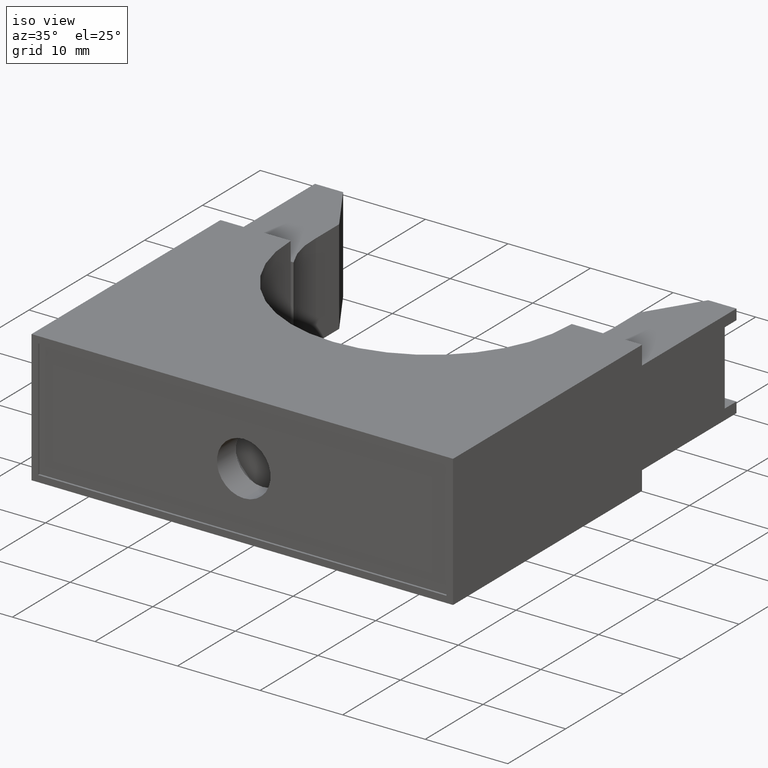
[diagram: clean part render]
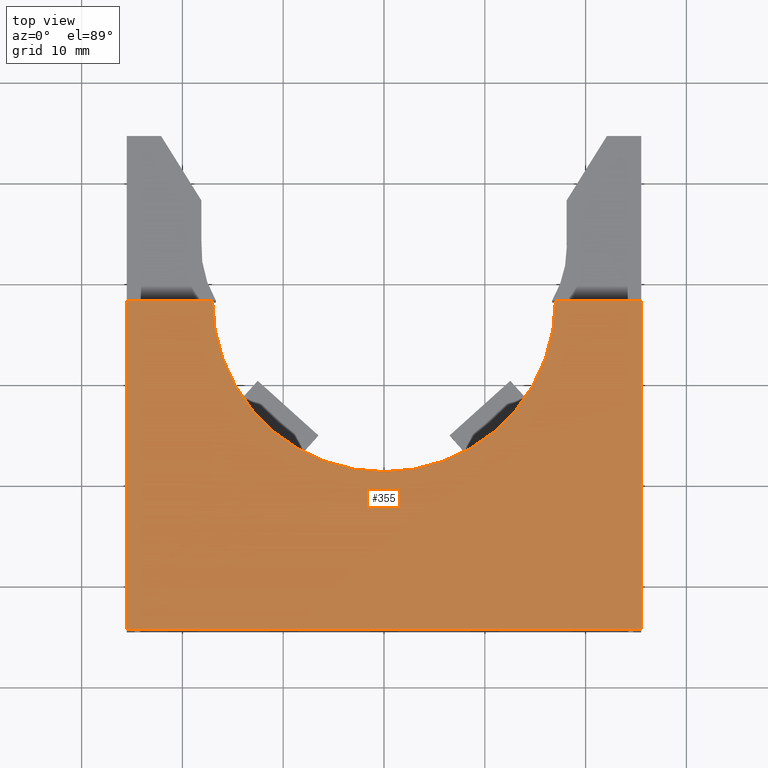
[diagram: tour spotlight — one face highlighted and labeled with its STEP entity id]
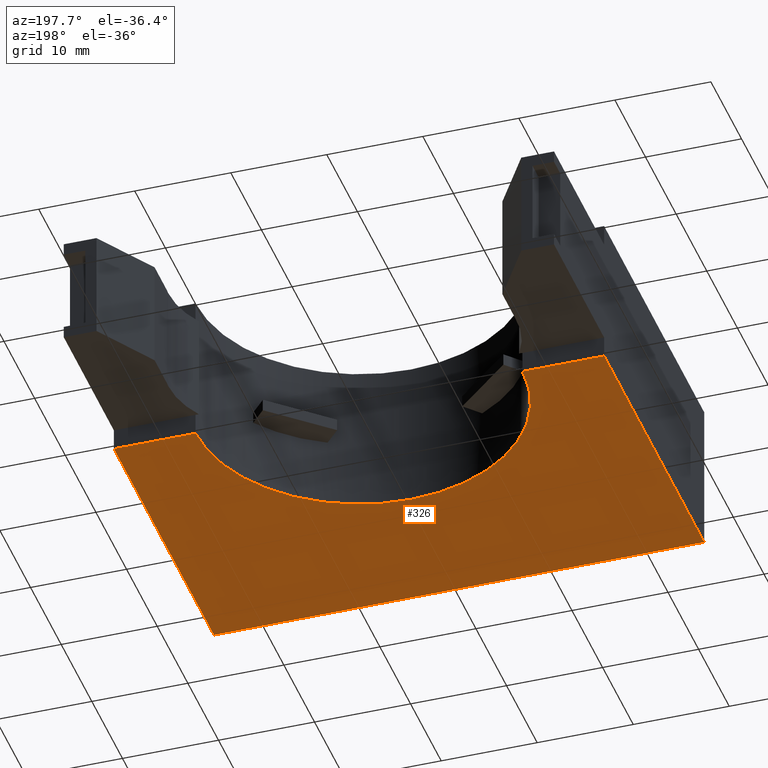
[diagram: tour spotlight — one face highlighted and labeled with its STEP entity id]
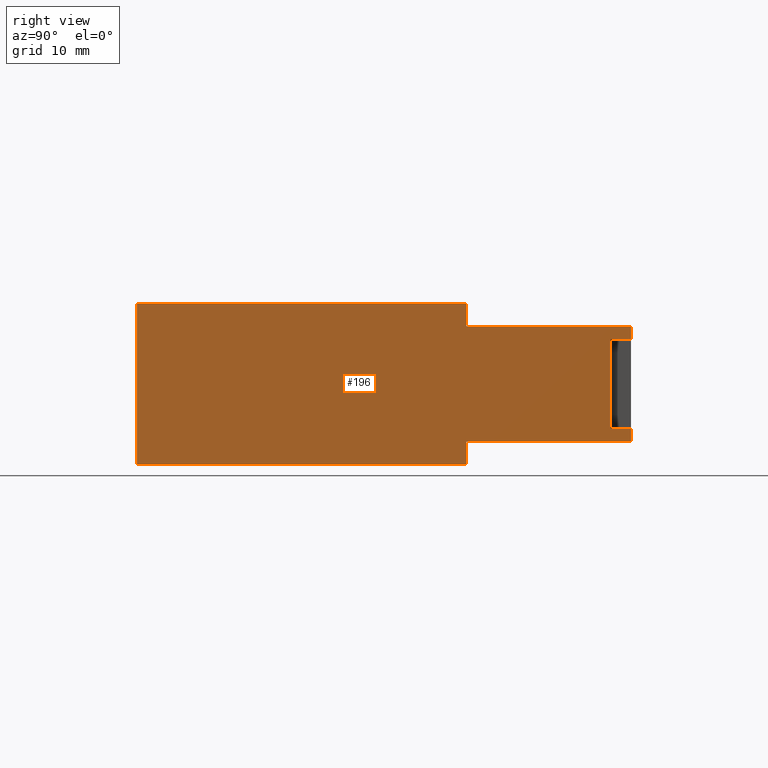
[diagram: tour spotlight — one face highlighted and labeled with its STEP entity id]
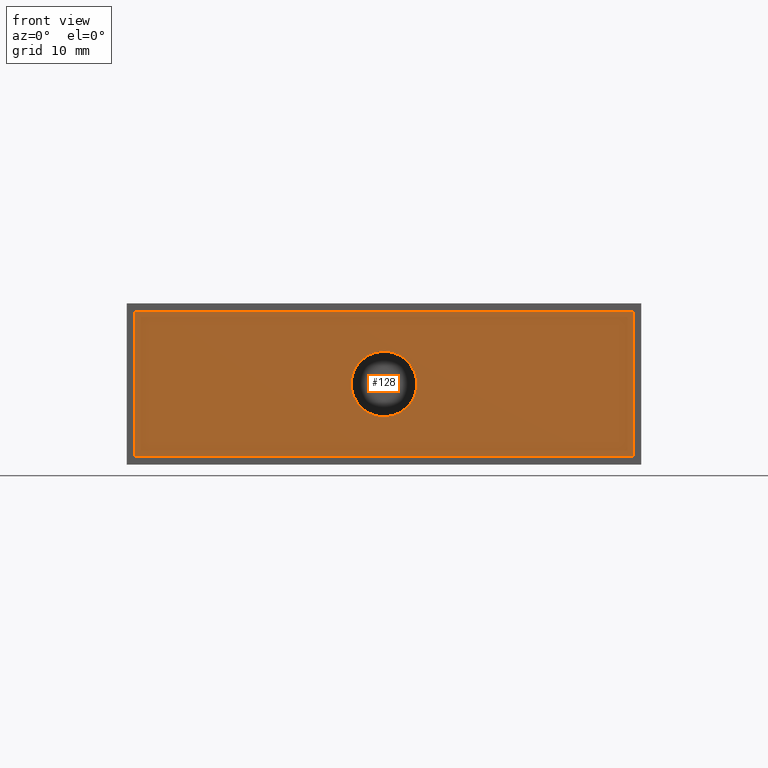
[diagram: tour spotlight — one face highlighted and labeled with its STEP entity id]
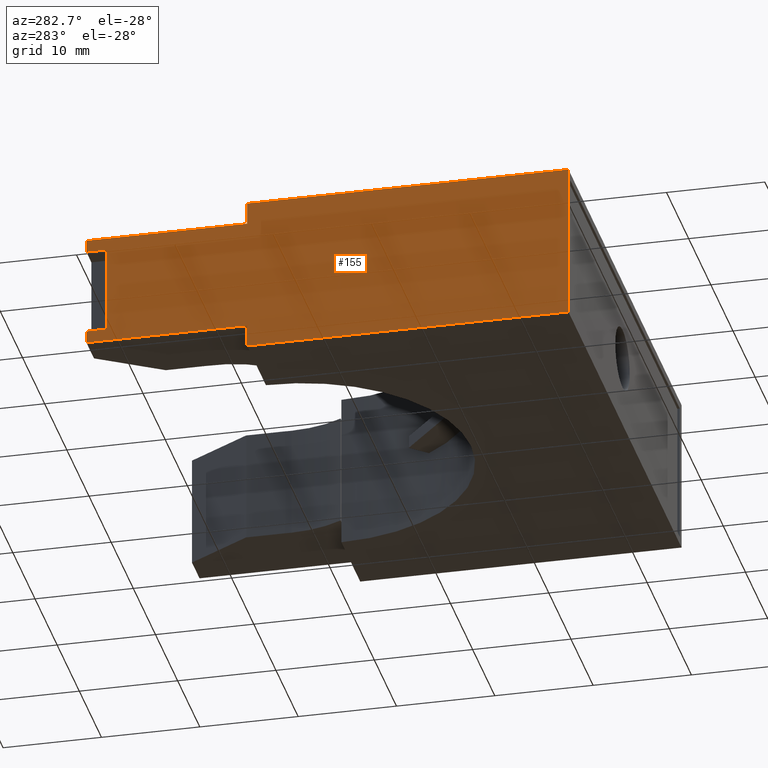
[diagram: tour spotlight — one face highlighted and labeled with its STEP entity id]
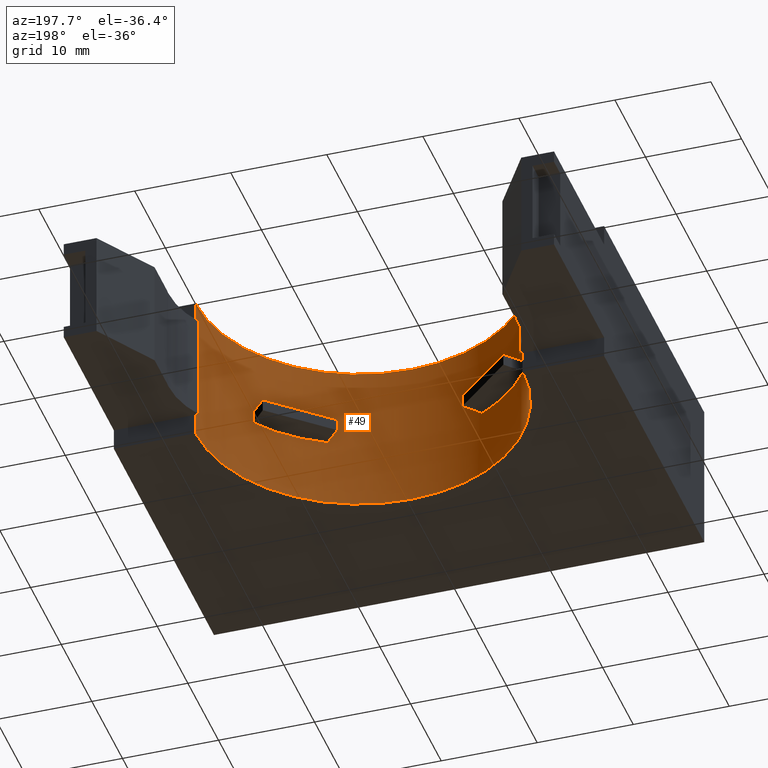
[diagram: tour spotlight — one face highlighted and labeled with its STEP entity id]
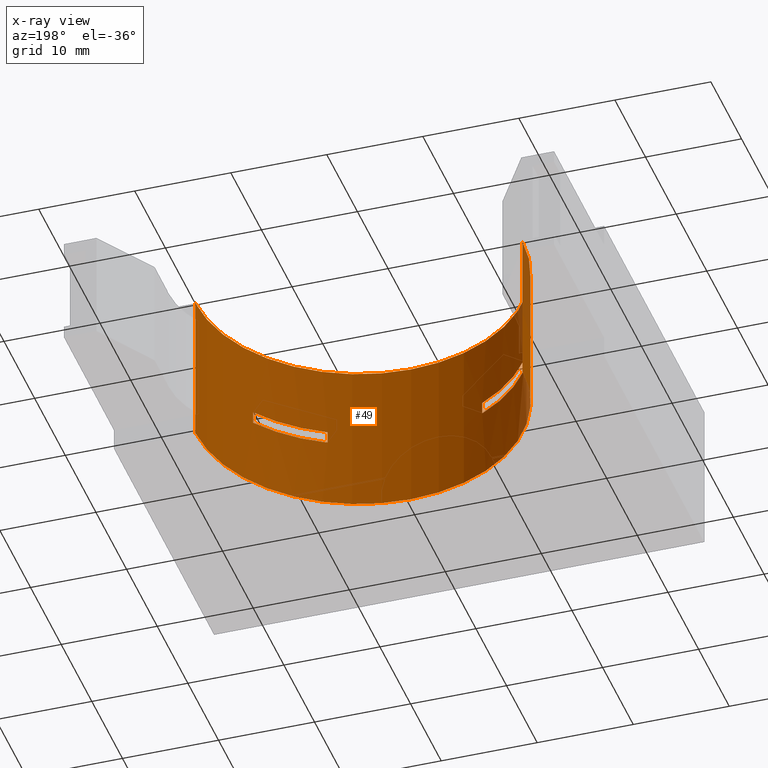
[diagram: x-ray of the same camera — body ghosted, this tour face saturated]
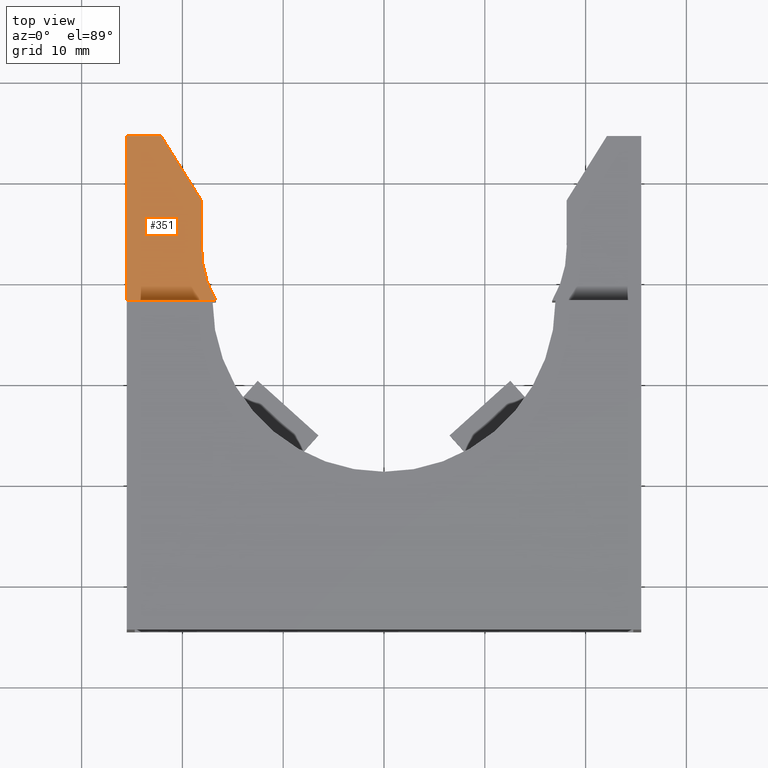
[diagram: tour spotlight — one face highlighted and labeled with its STEP entity id]
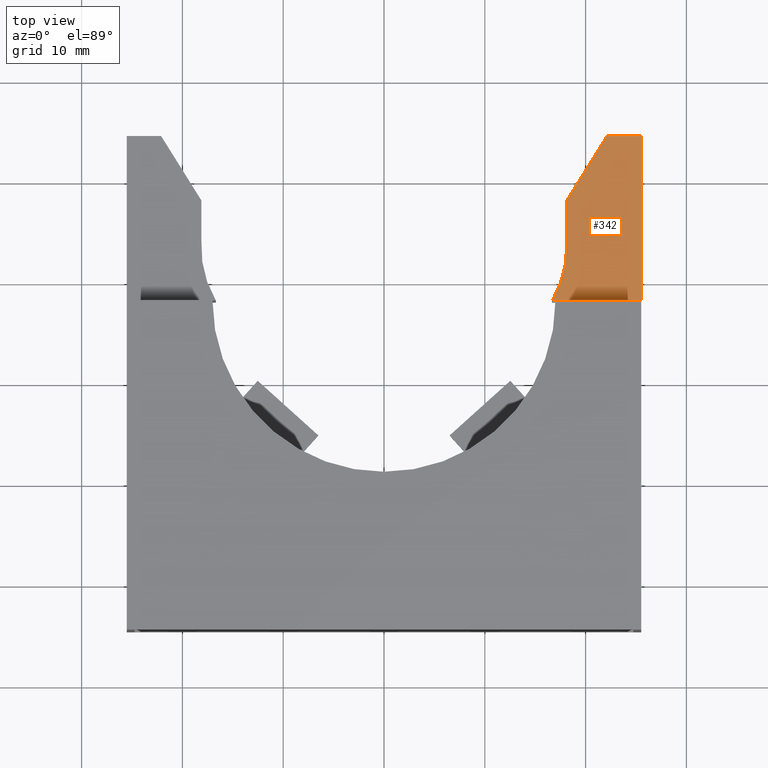
[diagram: tour spotlight — one face highlighted and labeled with its STEP entity id]
A machine part: a face-by-face anatomy tour. The part has 54 B-rep faces; the first image is the clean iso view, then the 8 largest visible faces are spotlighted one at a time (largest first), each with its STEP entity span.

Face 1 — top view, entity #355. In plain terms, the highlighted planar face has unit normal (-0, 0, 1).
Definition (entity closure, byte-faithful):
#30 = VERTEX_POINT ( 'NONE', #560 ) ;
#33 = VERTEX_POINT ( 'NONE', #555 ) ;
#35 = EDGE_CURVE ( 'NONE', #418, #33, #554, .T. ) ;
#48 = VERTEX_POINT ( 'NONE', #530 ) ;
#53 = VERTEX_POINT ( 'NONE', #771 ) ;
#82 = EDGE_CURVE ( 'NONE', #53, #30, #770, .T. ) ;
#121 = VERTEX_POINT ( 'NONE', #783 ) ;
#126 = EDGE_CURVE ( 'NONE', #48, #121, #823, .T. ) ;
#258 = EDGE_LOOP ( 'NONE', ( #372, #374, #375, #322, #323, #325 ) ) ;
#298 = EDGE_CURVE ( 'NONE', #30, #418, #959, .T. ) ;
#322 = ORIENTED_EDGE ( 'NONE', *, *, #35, .T. ) ;
#323 = ORIENTED_EDGE ( 'NONE', *, *, #324, .F. ) ;
#324 = EDGE_CURVE ( 'NONE', #121, #33, #1220, .T. ) ;
#325 = ORIENTED_EDGE ( 'NONE', *, *, #126, .F. ) ;
#355 = ADVANCED_FACE ( 'NONE', ( #1332 ), #1330, .T. ) ;
#372 = ORIENTED_EDGE ( 'NONE', *, *, #373, .F. ) ;
#373 = EDGE_CURVE ( 'NONE', #53, #48, #1288, .T. ) ;
#374 = ORIENTED_EDGE ( 'NONE', *, *, #82, .T. ) ;
#375 = ORIENTED_EDGE ( 'NONE', *, *, #298, .T. ) ;
#418 = VERTEX_POINT ( 'NONE', #1277 ) ;
#530 = CARTESIAN_POINT ( 'NONE',  ( -0.6700000000000000400, 0.3216666666666667700, 0.6300000000000000000 ) ) ;
#551 = DIRECTION ( 'NONE',  ( -1.415465281691328100E-016, 1.000000000000000000, -0.0000000000000000000 ) ) ;
#552 = VECTOR ( 'NONE', #551, 39.37007874015748100 ) ;
#553 = CARTESIAN_POINT ( 'NONE',  ( 1.004999999999999900, 0.9650000000000000800, 0.6300000000000000000 ) ) ;
#554 = LINE ( 'NONE', #553, #552 ) ;
#555 = CARTESIAN_POINT ( 'NONE',  ( 1.005000000000000100, 0.3216666666666667700, 0.6300000000000000000 ) ) ;
#560 = CARTESIAN_POINT ( 'NONE',  ( -1.004999999999999900, -0.9649999999999998600, 0.6300000000000000000 ) ) ;
#767 = DIRECTION ( 'NONE',  ( 1.415465281691328100E-016, -1.000000000000000000, 0.0000000000000000000 ) ) ;
#768 = VECTOR ( 'NONE', #767, 39.37007874015748100 ) ;
#769 = CARTESIAN_POINT ( 'NONE',  ( -1.005000000000000100, 0.9650000000000000800, 0.6300000000000000000 ) ) ;
#770 = LINE ( 'NONE', #769, #768 ) ;
#771 = CARTESIAN_POINT ( 'NONE',  ( -1.005000000000000100, 0.3216666666666667700, 0.6300000000000000000 ) ) ;
#783 = CARTESIAN_POINT ( 'NONE',  ( 0.6699999999999993700, 0.3216666666666667700, 0.6300000000000000000 ) ) ;
#819 = DIRECTION ( 'NONE',  ( 1.000000000000000000, 0.0000000000000000000, 0.0000000000000000000 ) ) ;
#820 = DIRECTION ( 'NONE',  ( 0.0000000000000000000, 0.0000000000000000000, 1.000000000000000000 ) ) ;
#821 = CARTESIAN_POINT ( 'NONE',  ( 0.0000000000000000000, 0.3216666666666668800, 0.6300000000000000000 ) ) ;
#822 = AXIS2_PLACEMENT_3D ( 'NONE', #821, #820, #819 ) ;
#823 = CIRCLE ( 'NONE', #822, 0.6699999999999999300 ) ;
#956 = DIRECTION ( 'NONE',  ( 1.000000000000000000, 0.0000000000000000000, 0.0000000000000000000 ) ) ;
#957 = VECTOR ( 'NONE', #956, 39.37007874015748100 ) ;
#958 = CARTESIAN_POINT ( 'NONE',  ( -1.004999999999999900, -0.9649999999999998600, 0.6300000000000000000 ) ) ;
#959 = LINE ( 'NONE', #958, #957 ) ;
#1217 = DIRECTION ( 'NONE',  ( 1.000000000000000000, -0.0000000000000000000, -0.0000000000000000000 ) ) ;
#1218 = VECTOR ( 'NONE', #1217, 39.37007874015748100 ) ;
#1219 = CARTESIAN_POINT ( 'NONE',  ( -1.005000000000000100, 0.3216666666666667700, 0.6300000000000000000 ) ) ;
#1220 = LINE ( 'NONE', #1219, #1218 ) ;
#1277 = CARTESIAN_POINT ( 'NONE',  ( 1.005000000000000100, -0.9649999999999998600, 0.6300000000000000000 ) ) ;
#1285 = DIRECTION ( 'NONE',  ( 1.000000000000000000, -0.0000000000000000000, -0.0000000000000000000 ) ) ;
#1286 = VECTOR ( 'NONE', #1285, 39.37007874015748100 ) ;
#1287 = CARTESIAN_POINT ( 'NONE',  ( -1.005000000000000100, 0.3216666666666667700, 0.6300000000000000000 ) ) ;
#1288 = LINE ( 'NONE', #1287, #1286 ) ;
#1326 = DIRECTION ( 'NONE',  ( 1.000000000000000000, 0.0000000000000000000, 0.0000000000000000000 ) ) ;
#1327 = DIRECTION ( 'NONE',  ( -0.0000000000000000000, 0.0000000000000000000, 1.000000000000000000 ) ) ;
#1328 = CARTESIAN_POINT ( 'NONE',  ( -1.004999999999999900, -0.9649999999999998600, 0.6300000000000000000 ) ) ;
#1329 = AXIS2_PLACEMENT_3D ( 'NONE', #1328, #1327, #1326 ) ;
#1330 = PLANE ( 'NONE',  #1329 ) ;
#1332 = FACE_OUTER_BOUND ( 'NONE', #258, .T. ) ;

Face 2 — auxiliary view, entity #326. In plain terms, the highlighted planar face has unit normal (-0, 0, 1).
Definition (entity closure, byte-faithful):
#12 = VERTEX_POINT ( 'NONE', #682 ) ;
#17 = EDGE_CURVE ( 'NONE', #247, #18, #672, .T. ) ;
#18 = VERTEX_POINT ( 'NONE', #668 ) ;
#46 = VERTEX_POINT ( 'NONE', #531 ) ;
#67 = EDGE_CURVE ( 'NONE', #18, #12, #888, .T. ) ;
#185 = EDGE_CURVE ( 'NONE', #186, #46, #1085, .T. ) ;
#186 = VERTEX_POINT ( 'NONE', #932 ) ;
#247 = VERTEX_POINT ( 'NONE', #1103 ) ;
#284 = EDGE_LOOP ( 'NONE', ( #285, #286, #360, #361, #439, #440 ) ) ;
#285 = ORIENTED_EDGE ( 'NONE', *, *, #291, .F. ) ;
#286 = ORIENTED_EDGE ( 'NONE', *, *, #287, .T. ) ;
#287 = EDGE_CURVE ( 'NONE', #400, #186, #1135, .T. ) ;
#291 = EDGE_CURVE ( 'NONE', #400, #247, #1127, .T. ) ;
#326 = ADVANCED_FACE ( 'NONE', ( #1216 ), #1215, .F. ) ;
#360 = ORIENTED_EDGE ( 'NONE', *, *, #185, .T. ) ;
#361 = ORIENTED_EDGE ( 'NONE', *, *, #362, .T. ) ;
#362 = EDGE_CURVE ( 'NONE', #46, #12, #1321, .T. ) ;
#400 = VERTEX_POINT ( 'NONE', #1233 ) ;
#439 = ORIENTED_EDGE ( 'NONE', *, *, #67, .F. ) ;
#440 = ORIENTED_EDGE ( 'NONE', *, *, #17, .F. ) ;
#531 = CARTESIAN_POINT ( 'NONE',  ( 0.6699999999999993700, 0.3216666666666668800, 0.0000000000000000000 ) ) ;
#668 = CARTESIAN_POINT ( 'NONE',  ( 1.005000000000000100, -0.9649999999999998600, 0.0000000000000000000 ) ) ;
#669 = DIRECTION ( 'NONE',  ( 1.000000000000000000, 0.0000000000000000000, 0.0000000000000000000 ) ) ;
#670 = VECTOR ( 'NONE', #669, 39.37007874015748100 ) ;
#671 = CARTESIAN_POINT ( 'NONE',  ( -1.004999999999999900, -0.9649999999999998600, 0.0000000000000000000 ) ) ;
#672 = LINE ( 'NONE', #671, #670 ) ;
#682 = CARTESIAN_POINT ( 'NONE',  ( 1.005000000000000100, 0.3216666666666668800, 0.0000000000000000000 ) ) ;
#885 = DIRECTION ( 'NONE',  ( -1.415465281691328100E-016, 1.000000000000000000, -0.0000000000000000000 ) ) ;
#886 = VECTOR ( 'NONE', #885, 39.37007874015748100 ) ;
#887 = CARTESIAN_POINT ( 'NONE',  ( 1.004999999999999900, 0.9650000000000000800, 0.0000000000000000000 ) ) ;
#888 = LINE ( 'NONE', #887, #886 ) ;
#932 = CARTESIAN_POINT ( 'NONE',  ( -0.6700000000000000400, 0.3216666666666668800, 0.0000000000000000000 ) ) ;
#933 = DIRECTION ( 'NONE',  ( 1.000000000000000000, 0.0000000000000000000, 0.0000000000000000000 ) ) ;
#934 = DIRECTION ( 'NONE',  ( 0.0000000000000000000, 0.0000000000000000000, 1.000000000000000000 ) ) ;
#935 = CARTESIAN_POINT ( 'NONE',  ( 0.0000000000000000000, 0.3216666666666668800, 0.0000000000000000000 ) ) ;
#936 = AXIS2_PLACEMENT_3D ( 'NONE', #935, #934, #933 ) ;
#966 = DIRECTION ( 'NONE',  ( 1.415465281691328100E-016, -1.000000000000000000, 0.0000000000000000000 ) ) ;
#967 = VECTOR ( 'NONE', #966, 39.37007874015748100 ) ;
#968 = CARTESIAN_POINT ( 'NONE',  ( -1.005000000000000100, 0.9650000000000000800, 0.0000000000000000000 ) ) ;
#1085 = CIRCLE ( 'NONE', #936, 0.6699999999999999300 ) ;
#1103 = CARTESIAN_POINT ( 'NONE',  ( -1.004999999999999900, -0.9649999999999998600, 0.0000000000000000000 ) ) ;
#1127 = LINE ( 'NONE', #968, #967 ) ;
#1132 = DIRECTION ( 'NONE',  ( 1.000000000000000000, -0.0000000000000000000, -0.0000000000000000000 ) ) ;
#1133 = VECTOR ( 'NONE', #1132, 39.37007874015748100 ) ;
#1134 = CARTESIAN_POINT ( 'NONE',  ( -1.005000000000000100, 0.3216666666666668800, 0.0000000000000000000 ) ) ;
#1135 = LINE ( 'NONE', #1134, #1133 ) ;
#1167 = DIRECTION ( 'NONE',  ( 1.000000000000000000, 0.0000000000000000000, 0.0000000000000000000 ) ) ;
#1168 = DIRECTION ( 'NONE',  ( -0.0000000000000000000, 0.0000000000000000000, 1.000000000000000000 ) ) ;
#1210 = AXIS2_PLACEMENT_3D ( 'NONE', #1211, #1168, #1167 ) ;
#1211 = CARTESIAN_POINT ( 'NONE',  ( -1.004999999999999900, -0.9649999999999998600, 0.0000000000000000000 ) ) ;
#1215 = PLANE ( 'NONE',  #1210 ) ;
#1216 = FACE_OUTER_BOUND ( 'NONE', #284, .T. ) ;
#1233 = CARTESIAN_POINT ( 'NONE',  ( -1.005000000000000100, 0.3216666666666668800, 0.0000000000000000000 ) ) ;
#1318 = DIRECTION ( 'NONE',  ( 1.000000000000000000, -0.0000000000000000000, -0.0000000000000000000 ) ) ;
#1319 = VECTOR ( 'NONE', #1318, 39.37007874015748100 ) ;
#1320 = CARTESIAN_POINT ( 'NONE',  ( -1.005000000000000100, 0.3216666666666668800, 0.0000000000000000000 ) ) ;
#1321 = LINE ( 'NONE', #1320, #1319 ) ;

Face 3 — right view, entity #196. In plain terms, the highlighted planar face has unit normal (-1, -0, 0).
Definition (entity closure, byte-faithful):
#12 = VERTEX_POINT ( 'NONE', #682 ) ;
#13 = ORIENTED_EDGE ( 'NONE', *, *, #14, .F. ) ;
#14 = EDGE_CURVE ( 'NONE', #15, #12, #677, .T. ) ;
#15 = VERTEX_POINT ( 'NONE', #673 ) ;
#16 = ORIENTED_EDGE ( 'NONE', *, *, #70, .F. ) ;
#18 = VERTEX_POINT ( 'NONE', #668 ) ;
#20 = EDGE_CURVE ( 'NONE', #418, #18, #667, .T. ) ;
#32 = EDGE_CURVE ( 'NONE', #33, #64, #559, .T. ) ;
#33 = VERTEX_POINT ( 'NONE', #555 ) ;
#34 = ORIENTED_EDGE ( 'NONE', *, *, #35, .F. ) ;
#35 = EDGE_CURVE ( 'NONE', #418, #33, #554, .T. ) ;
#55 = ORIENTED_EDGE ( 'NONE', *, *, #56, .T. ) ;
#56 = EDGE_CURVE ( 'NONE', #383, #57, #850, .T. ) ;
#57 = VERTEX_POINT ( 'NONE', #846 ) ;
#58 = ORIENTED_EDGE ( 'NONE', *, *, #59, .F. ) ;
#59 = EDGE_CURVE ( 'NONE', #60, #57, #765, .T. ) ;
#60 = VERTEX_POINT ( 'NONE', #746 ) ;
#62 = ORIENTED_EDGE ( 'NONE', *, *, #63, .F. ) ;
#63 = EDGE_CURVE ( 'NONE', #64, #60, #835, .T. ) ;
#64 = VERTEX_POINT ( 'NONE', #856 ) ;
#65 = ORIENTED_EDGE ( 'NONE', *, *, #32, .F. ) ;
#66 = ORIENTED_EDGE ( 'NONE', *, *, #67, .T. ) ;
#67 = EDGE_CURVE ( 'NONE', #18, #12, #888, .T. ) ;
#70 = EDGE_CURVE ( 'NONE', #71, #15, #892, .T. ) ;
#71 = VERTEX_POINT ( 'NONE', #689 ) ;
#72 = ORIENTED_EDGE ( 'NONE', *, *, #73, .F. ) ;
#73 = EDGE_CURVE ( 'NONE', #74, #71, #753, .T. ) ;
#74 = VERTEX_POINT ( 'NONE', #749 ) ;
#154 = ORIENTED_EDGE ( 'NONE', *, *, #20, .T. ) ;
#196 = ADVANCED_FACE ( 'NONE', ( #1033 ), #1037, .F. ) ;
#262 = EDGE_CURVE ( 'NONE', #384, #74, #1046, .T. ) ;
#295 = EDGE_LOOP ( 'NONE', ( #398, #55, #58, #62, #65, #34, #154, #66, #13, #16, #72, #394 ) ) ;
#382 = EDGE_CURVE ( 'NONE', #383, #384, #1161, .T. ) ;
#383 = VERTEX_POINT ( 'NONE', #1154 ) ;
#384 = VERTEX_POINT ( 'NONE', #1248 ) ;
#394 = ORIENTED_EDGE ( 'NONE', *, *, #262, .F. ) ;
#398 = ORIENTED_EDGE ( 'NONE', *, *, #382, .F. ) ;
#418 = VERTEX_POINT ( 'NONE', #1277 ) ;
#551 = DIRECTION ( 'NONE',  ( -1.415465281691328100E-016, 1.000000000000000000, -0.0000000000000000000 ) ) ;
#552 = VECTOR ( 'NONE', #551, 39.37007874015748100 ) ;
#553 = CARTESIAN_POINT ( 'NONE',  ( 1.004999999999999900, 0.9650000000000000800, 0.6300000000000000000 ) ) ;
#554 = LINE ( 'NONE', #553, #552 ) ;
#555 = CARTESIAN_POINT ( 'NONE',  ( 1.005000000000000100, 0.3216666666666667700, 0.6300000000000000000 ) ) ;
#556 = DIRECTION ( 'NONE',  ( 0.0000000000000000000, 0.0000000000000000000, -1.000000000000000000 ) ) ;
#557 = VECTOR ( 'NONE', #556, 39.37007874015748100 ) ;
#558 = CARTESIAN_POINT ( 'NONE',  ( 1.005000000000000100, 0.3216666666666667700, 0.6300000000000000000 ) ) ;
#559 = LINE ( 'NONE', #558, #557 ) ;
#664 = DIRECTION ( 'NONE',  ( -0.0000000000000000000, -0.0000000000000000000, -1.000000000000000000 ) ) ;
#665 = VECTOR ( 'NONE', #664, 39.37007874015748100 ) ;
#666 = CARTESIAN_POINT ( 'NONE',  ( 1.005000000000000100, -0.9649999999999998600, 0.6300000000000000000 ) ) ;
#667 = LINE ( 'NONE', #666, #665 ) ;
#668 = CARTESIAN_POINT ( 'NONE',  ( 1.005000000000000100, -0.9649999999999998600, 0.0000000000000000000 ) ) ;
#673 = CARTESIAN_POINT ( 'NONE',  ( 1.005000000000000100, 0.3216666666666668800, 0.08954999999999972700 ) ) ;
#674 = DIRECTION ( 'NONE',  ( -0.0000000000000000000, -0.0000000000000000000, -1.000000000000000000 ) ) ;
#675 = VECTOR ( 'NONE', #674, 39.37007874015748100 ) ;
#676 = CARTESIAN_POINT ( 'NONE',  ( 1.005000000000000100, 0.3216666666666668800, 0.0000000000000000000 ) ) ;
#677 = LINE ( 'NONE', #676, #675 ) ;
#682 = CARTESIAN_POINT ( 'NONE',  ( 1.005000000000000100, 0.3216666666666668800, 0.0000000000000000000 ) ) ;
#689 = CARTESIAN_POINT ( 'NONE',  ( 1.005000000000000100, 0.9650000000000000800, 0.08954999999999979600 ) ) ;
#746 = CARTESIAN_POINT ( 'NONE',  ( 1.005000000000000100, 0.9650000000000000800, 0.5404500000000004300 ) ) ;
#749 = CARTESIAN_POINT ( 'NONE',  ( 1.004999999999999900, 0.9650000000000000800, 0.1397749999999995900 ) ) ;
#750 = DIRECTION ( 'NONE',  ( -0.0000000000000000000, -0.0000000000000000000, -1.000000000000000000 ) ) ;
#751 = VECTOR ( 'NONE', #750, 39.37007874015748100 ) ;
#752 = CARTESIAN_POINT ( 'NONE',  ( 1.004999999999999900, 0.9650000000000000800, 0.6300000000000000000 ) ) ;
#753 = LINE ( 'NONE', #752, #751 ) ;
#762 = DIRECTION ( 'NONE',  ( -0.0000000000000000000, -0.0000000000000000000, -1.000000000000000000 ) ) ;
#763 = VECTOR ( 'NONE', #762, 39.37007874015748100 ) ;
#764 = CARTESIAN_POINT ( 'NONE',  ( 1.004999999999999900, 0.9650000000000000800, 0.6300000000000000000 ) ) ;
#765 = LINE ( 'NONE', #764, #763 ) ;
#834 = CARTESIAN_POINT ( 'NONE',  ( 1.005000000000000100, 0.9650000000000000800, 0.5404500000000004300 ) ) ;
#835 = LINE ( 'NONE', #834, #858 ) ;
#846 = CARTESIAN_POINT ( 'NONE',  ( 1.005000000000000100, 0.9650000000000000800, 0.4902249999999999700 ) ) ;
#847 = DIRECTION ( 'NONE',  ( -0.0000000000000000000, 1.000000000000000000, -0.0000000000000000000 ) ) ;
#848 = VECTOR ( 'NONE', #847, 39.37007874015748100 ) ;
#849 = CARTESIAN_POINT ( 'NONE',  ( 1.005000000000000100, 0.8850000000000001200, 0.4902249999999999700 ) ) ;
#850 = LINE ( 'NONE', #849, #848 ) ;
#856 = CARTESIAN_POINT ( 'NONE',  ( 1.005000000000000100, 0.3216666666666667700, 0.5404500000000002100 ) ) ;
#857 = DIRECTION ( 'NONE',  ( -0.0000000000000000000, 1.000000000000000000, 2.123197922536992200E-016 ) ) ;
#858 = VECTOR ( 'NONE', #857, 39.37007874015748100 ) ;
#885 = DIRECTION ( 'NONE',  ( -1.415465281691328100E-016, 1.000000000000000000, -0.0000000000000000000 ) ) ;
#886 = VECTOR ( 'NONE', #885, 39.37007874015748100 ) ;
#887 = CARTESIAN_POINT ( 'NONE',  ( 1.004999999999999900, 0.9650000000000000800, 0.0000000000000000000 ) ) ;
#888 = LINE ( 'NONE', #887, #886 ) ;
#889 = DIRECTION ( 'NONE',  ( 0.0000000000000000000, -1.000000000000000000, -1.061598961268496300E-016 ) ) ;
#890 = VECTOR ( 'NONE', #889, 39.37007874015748100 ) ;
#891 = CARTESIAN_POINT ( 'NONE',  ( 1.005000000000000100, 0.9650000000000000800, 0.08954999999999979600 ) ) ;
#892 = LINE ( 'NONE', #891, #890 ) ;
#1031 = AXIS2_PLACEMENT_3D ( 'NONE', #1032, #1068, #1067 ) ;
#1032 = CARTESIAN_POINT ( 'NONE',  ( 1.004999999999999900, 0.9650000000000000800, 0.6300000000000000000 ) ) ;
#1033 = FACE_OUTER_BOUND ( 'NONE', #295, .T. ) ;
#1037 = PLANE ( 'NONE',  #1031 ) ;
#1043 = DIRECTION ( 'NONE',  ( -0.0000000000000000000, 1.000000000000000000, -0.0000000000000000000 ) ) ;
#1044 = VECTOR ( 'NONE', #1043, 39.37007874015748100 ) ;
#1045 = CARTESIAN_POINT ( 'NONE',  ( 1.005000000000000100, 0.8850000000000001200, 0.1397749999999995900 ) ) ;
#1046 = LINE ( 'NONE', #1045, #1044 ) ;
#1067 = DIRECTION ( 'NONE',  ( 1.415465281691328100E-016, -1.000000000000000000, 0.0000000000000000000 ) ) ;
#1068 = DIRECTION ( 'NONE',  ( -1.000000000000000000, -1.415465281691328100E-016, 0.0000000000000000000 ) ) ;
#1154 = CARTESIAN_POINT ( 'NONE',  ( 1.005000000000000100, 0.8850000000000001200, 0.4902249999999999700 ) ) ;
#1155 = DIRECTION ( 'NONE',  ( 3.897628753979541200E-016, -0.0000000000000000000, -1.000000000000000000 ) ) ;
#1156 = VECTOR ( 'NONE', #1155, 39.37007874015748100 ) ;
#1157 = CARTESIAN_POINT ( 'NONE',  ( 1.005000000000000100, 0.8850000000000001200, 0.1397749999999995900 ) ) ;
#1161 = LINE ( 'NONE', #1157, #1156 ) ;
#1248 = CARTESIAN_POINT ( 'NONE',  ( 1.005000000000000100, 0.8850000000000001200, 0.1397749999999995900 ) ) ;
#1277 = CARTESIAN_POINT ( 'NONE',  ( 1.005000000000000100, -0.9649999999999998600, 0.6300000000000000000 ) ) ;

Face 4 — front view, entity #128. In plain terms, the highlighted planar face has unit normal (-0, -1, 0).
Definition (entity closure, byte-faithful):
#128 = ADVANCED_FACE ( 'NONE', ( #731, #730 ), #729, .T. ) ;
#129 = EDGE_LOOP ( 'NONE', ( #130, #134, #137, #190 ) ) ;
#130 = ORIENTED_EDGE ( 'NONE', *, *, #131, .T. ) ;
#131 = EDGE_CURVE ( 'NONE', #132, #133, #727, .T. ) ;
#132 = VERTEX_POINT ( 'NONE', #817 ) ;
#133 = VERTEX_POINT ( 'NONE', #816 ) ;
#134 = ORIENTED_EDGE ( 'NONE', *, *, #135, .T. ) ;
#135 = EDGE_CURVE ( 'NONE', #133, #136, #815, .T. ) ;
#136 = VERTEX_POINT ( 'NONE', #811 ) ;
#137 = ORIENTED_EDGE ( 'NONE', *, *, #138, .T. ) ;
#138 = EDGE_CURVE ( 'NONE', #136, #139, #810, .T. ) ;
#139 = VERTEX_POINT ( 'NONE', #806 ) ;
#140 = EDGE_LOOP ( 'NONE', ( #192, #194 ) ) ;
#172 = EDGE_CURVE ( 'NONE', #173, #174, #1094, .T. ) ;
#173 = VERTEX_POINT ( 'NONE', #1057 ) ;
#174 = VERTEX_POINT ( 'NONE', #1056 ) ;
#190 = ORIENTED_EDGE ( 'NONE', *, *, #191, .T. ) ;
#191 = EDGE_CURVE ( 'NONE', #139, #132, #1042, .T. ) ;
#192 = ORIENTED_EDGE ( 'NONE', *, *, #193, .T. ) ;
#193 = EDGE_CURVE ( 'NONE', #174, #173, #1118, .T. ) ;
#194 = ORIENTED_EDGE ( 'NONE', *, *, #172, .T. ) ;
#721 = DIRECTION ( 'NONE',  ( -0.0000000000000000000, -0.0000000000000000000, 1.000000000000000000 ) ) ;
#722 = VECTOR ( 'NONE', #721, 39.37007874015748100 ) ;
#723 = CARTESIAN_POINT ( 'NONE',  ( 0.9737500000000000000, -0.9549999999999999600, 0.5987500000000000000 ) ) ;
#724 = DIRECTION ( 'NONE',  ( 1.000000000000000000, -1.402746081470738500E-016, 0.0000000000000000000 ) ) ;
#725 = DIRECTION ( 'NONE',  ( -1.402746081470738500E-016, -1.000000000000000000, 0.0000000000000000000 ) ) ;
#726 = AXIS2_PLACEMENT_3D ( 'NONE', #728, #725, #724 ) ;
#727 = LINE ( 'NONE', #723, #722 ) ;
#728 = CARTESIAN_POINT ( 'NONE',  ( 0.9737500000000001200, -0.9549999999999999600, 0.5987500000000000000 ) ) ;
#729 = PLANE ( 'NONE',  #726 ) ;
#730 = FACE_BOUND ( 'NONE', #140, .T. ) ;
#731 = FACE_OUTER_BOUND ( 'NONE', #129, .T. ) ;
#806 = CARTESIAN_POINT ( 'NONE',  ( -0.9737499999999997800, -0.9549999999999996300, 0.03124999999999997600 ) ) ;
#807 = DIRECTION ( 'NONE',  ( -0.0000000000000000000, -0.0000000000000000000, -1.000000000000000000 ) ) ;
#808 = VECTOR ( 'NONE', #807, 39.37007874015748100 ) ;
#809 = CARTESIAN_POINT ( 'NONE',  ( -0.9737499999999997800, -0.9549999999999996300, 0.03124999999999997600 ) ) ;
#810 = LINE ( 'NONE', #809, #808 ) ;
#811 = CARTESIAN_POINT ( 'NONE',  ( -0.9737499999999997800, -0.9549999999999996300, 0.5987500000000000000 ) ) ;
#812 = DIRECTION ( 'NONE',  ( -1.000000000000000000, 1.402746081470738500E-016, -0.0000000000000000000 ) ) ;
#813 = VECTOR ( 'NONE', #812, 39.37007874015748100 ) ;
#814 = CARTESIAN_POINT ( 'NONE',  ( -0.9737499999999997800, -0.9549999999999996300, 0.5987500000000000000 ) ) ;
#815 = LINE ( 'NONE', #814, #813 ) ;
#816 = CARTESIAN_POINT ( 'NONE',  ( 0.9737500000000000000, -0.9549999999999999600, 0.5987500000000000000 ) ) ;
#817 = CARTESIAN_POINT ( 'NONE',  ( 0.9737500000000000000, -0.9549999999999999600, 0.03125000000000000000 ) ) ;
#931 = CARTESIAN_POINT ( 'NONE',  ( 0.0000000000000000000, -0.9549999999999996300, 0.3149999999999998900 ) ) ;
#1039 = DIRECTION ( 'NONE',  ( 1.000000000000000000, -1.402746081470738500E-016, 1.315074451378817300E-017 ) ) ;
#1040 = VECTOR ( 'NONE', #1039, 39.37007874015748100 ) ;
#1041 = CARTESIAN_POINT ( 'NONE',  ( 0.9737500000000000000, -0.9549999999999999600, 0.03125000000000000000 ) ) ;
#1042 = LINE ( 'NONE', #1041, #1040 ) ;
#1056 = CARTESIAN_POINT ( 'NONE',  ( 0.0000000000000000000, -0.9549999999999996300, 0.4430314960629920800 ) ) ;
#1057 = CARTESIAN_POINT ( 'NONE',  ( 1.567933618435903400E-017, -0.9549999999999996300, 0.1869685039370077300 ) ) ;
#1058 = DIRECTION ( 'NONE',  ( 0.0000000000000000000, 0.0000000000000000000, 1.000000000000000000 ) ) ;
#1092 = DIRECTION ( 'NONE',  ( -0.0000000000000000000, 1.000000000000000000, 1.018617520532313100E-016 ) ) ;
#1093 = AXIS2_PLACEMENT_3D ( 'NONE', #931, #1092, #1058 ) ;
#1094 = CIRCLE ( 'NONE', #1093, 0.1280314960629921900 ) ;
#1114 = DIRECTION ( 'NONE',  ( 0.0000000000000000000, 0.0000000000000000000, 1.000000000000000000 ) ) ;
#1115 = DIRECTION ( 'NONE',  ( -0.0000000000000000000, 1.000000000000000000, 1.018617520532313100E-016 ) ) ;
#1116 = CARTESIAN_POINT ( 'NONE',  ( 0.0000000000000000000, -0.9549999999999996300, 0.3149999999999998900 ) ) ;
#1117 = AXIS2_PLACEMENT_3D ( 'NONE', #1116, #1115, #1114 ) ;
#1118 = CIRCLE ( 'NONE', #1117, 0.1280314960629921900 ) ;

Face 5 — auxiliary view, entity #155. In plain terms, the highlighted planar face has unit normal (1, 0, -0).
Definition (entity closure, byte-faithful):
#2 = ORIENTED_EDGE ( 'NONE', *, *, #68, .T. ) ;
#3 = ORIENTED_EDGE ( 'NONE', *, *, #156, .F. ) ;
#4 = ORIENTED_EDGE ( 'NONE', *, *, #105, .T. ) ;
#21 = ORIENTED_EDGE ( 'NONE', *, *, #181, .T. ) ;
#22 = ORIENTED_EDGE ( 'NONE', *, *, #23, .T. ) ;
#23 = EDGE_CURVE ( 'NONE', #183, #24, #663, .T. ) ;
#24 = VERTEX_POINT ( 'NONE', #659 ) ;
#28 = ORIENTED_EDGE ( 'NONE', *, *, #29, .F. ) ;
#29 = EDGE_CURVE ( 'NONE', #30, #247, #564, .T. ) ;
#30 = VERTEX_POINT ( 'NONE', #560 ) ;
#53 = VERTEX_POINT ( 'NONE', #771 ) ;
#54 = EDGE_LOOP ( 'NONE', ( #76, #399, #21, #22, #397, #376, #28, #81, #2, #77, #4, #3 ) ) ;
#68 = EDGE_CURVE ( 'NONE', #53, #297, #855, .T. ) ;
#69 = VERTEX_POINT ( 'NONE', #851 ) ;
#76 = ORIENTED_EDGE ( 'NONE', *, *, #296, .F. ) ;
#77 = ORIENTED_EDGE ( 'NONE', *, *, #78, .T. ) ;
#78 = EDGE_CURVE ( 'NONE', #297, #294, #761, .T. ) ;
#81 = ORIENTED_EDGE ( 'NONE', *, *, #82, .F. ) ;
#82 = EDGE_CURVE ( 'NONE', #53, #30, #770, .T. ) ;
#103 = VERTEX_POINT ( 'NONE', #778 ) ;
#105 = EDGE_CURVE ( 'NONE', #294, #103, #777, .T. ) ;
#155 = ADVANCED_FACE ( 'NONE', ( #699 ), #720, .F. ) ;
#156 = EDGE_CURVE ( 'NONE', #242, #103, #718, .T. ) ;
#181 = EDGE_CURVE ( 'NONE', #182, #183, #1030, .T. ) ;
#182 = VERTEX_POINT ( 'NONE', #1088 ) ;
#183 = VERTEX_POINT ( 'NONE', #1087 ) ;
#199 = EDGE_CURVE ( 'NONE', #24, #400, #1062, .T. ) ;
#242 = VERTEX_POINT ( 'NONE', #1108 ) ;
#247 = VERTEX_POINT ( 'NONE', #1103 ) ;
#291 = EDGE_CURVE ( 'NONE', #400, #247, #1127, .T. ) ;
#294 = VERTEX_POINT ( 'NONE', #965 ) ;
#296 = EDGE_CURVE ( 'NONE', #69, #242, #964, .T. ) ;
#297 = VERTEX_POINT ( 'NONE', #960 ) ;
#376 = ORIENTED_EDGE ( 'NONE', *, *, #291, .T. ) ;
#397 = ORIENTED_EDGE ( 'NONE', *, *, #199, .T. ) ;
#399 = ORIENTED_EDGE ( 'NONE', *, *, #420, .T. ) ;
#400 = VERTEX_POINT ( 'NONE', #1233 ) ;
#420 = EDGE_CURVE ( 'NONE', #69, #182, #1274, .T. ) ;
#560 = CARTESIAN_POINT ( 'NONE',  ( -1.004999999999999900, -0.9649999999999998600, 0.6300000000000000000 ) ) ;
#561 = DIRECTION ( 'NONE',  ( -0.0000000000000000000, -0.0000000000000000000, -1.000000000000000000 ) ) ;
#562 = VECTOR ( 'NONE', #561, 39.37007874015748100 ) ;
#563 = CARTESIAN_POINT ( 'NONE',  ( -1.004999999999999900, -0.9649999999999998600, 0.6300000000000000000 ) ) ;
#564 = LINE ( 'NONE', #563, #562 ) ;
#659 = CARTESIAN_POINT ( 'NONE',  ( -1.005000000000000100, 0.3216666666666668800, 0.08954999999999972700 ) ) ;
#660 = DIRECTION ( 'NONE',  ( 0.0000000000000000000, -1.000000000000000000, -1.061598961268496300E-016 ) ) ;
#661 = VECTOR ( 'NONE', #660, 39.37007874015748100 ) ;
#662 = CARTESIAN_POINT ( 'NONE',  ( -1.005000000000000100, 0.9650000000000000800, 0.08954999999999979600 ) ) ;
#663 = LINE ( 'NONE', #662, #661 ) ;
#699 = FACE_OUTER_BOUND ( 'NONE', #54, .T. ) ;
#711 = DIRECTION ( 'NONE',  ( -0.0000000000000000000, 1.000000000000000000, -0.0000000000000000000 ) ) ;
#712 = VECTOR ( 'NONE', #711, 39.37007874015748100 ) ;
#713 = CARTESIAN_POINT ( 'NONE',  ( -1.005000000000000100, 0.8850000000000001200, 0.4902249999999999700 ) ) ;
#715 = DIRECTION ( 'NONE',  ( -1.415465281691328100E-016, 1.000000000000000000, 0.0000000000000000000 ) ) ;
#716 = DIRECTION ( 'NONE',  ( 1.000000000000000000, 1.415465281691328100E-016, -0.0000000000000000000 ) ) ;
#717 = AXIS2_PLACEMENT_3D ( 'NONE', #719, #716, #715 ) ;
#718 = LINE ( 'NONE', #713, #712 ) ;
#719 = CARTESIAN_POINT ( 'NONE',  ( -1.005000000000000100, 0.9650000000000000800, 0.6300000000000000000 ) ) ;
#720 = PLANE ( 'NONE',  #717 ) ;
#758 = DIRECTION ( 'NONE',  ( -0.0000000000000000000, 1.000000000000000000, 2.123197922536992200E-016 ) ) ;
#759 = VECTOR ( 'NONE', #758, 39.37007874015748100 ) ;
#760 = CARTESIAN_POINT ( 'NONE',  ( -1.005000000000000100, 0.9650000000000000800, 0.5404500000000004300 ) ) ;
#761 = LINE ( 'NONE', #760, #759 ) ;
#767 = DIRECTION ( 'NONE',  ( 1.415465281691328100E-016, -1.000000000000000000, 0.0000000000000000000 ) ) ;
#768 = VECTOR ( 'NONE', #767, 39.37007874015748100 ) ;
#769 = CARTESIAN_POINT ( 'NONE',  ( -1.005000000000000100, 0.9650000000000000800, 0.6300000000000000000 ) ) ;
#770 = LINE ( 'NONE', #769, #768 ) ;
#771 = CARTESIAN_POINT ( 'NONE',  ( -1.005000000000000100, 0.3216666666666667700, 0.6300000000000000000 ) ) ;
#774 = DIRECTION ( 'NONE',  ( -0.0000000000000000000, -0.0000000000000000000, -1.000000000000000000 ) ) ;
#775 = VECTOR ( 'NONE', #774, 39.37007874015748100 ) ;
#776 = CARTESIAN_POINT ( 'NONE',  ( -1.005000000000000100, 0.9650000000000000800, 0.6300000000000000000 ) ) ;
#777 = LINE ( 'NONE', #776, #775 ) ;
#778 = CARTESIAN_POINT ( 'NONE',  ( -1.005000000000000100, 0.9650000000000000800, 0.4902249999999999700 ) ) ;
#851 = CARTESIAN_POINT ( 'NONE',  ( -1.005000000000000100, 0.8850000000000001200, 0.1397750000000000900 ) ) ;
#852 = DIRECTION ( 'NONE',  ( 0.0000000000000000000, 0.0000000000000000000, -1.000000000000000000 ) ) ;
#853 = VECTOR ( 'NONE', #852, 39.37007874015748100 ) ;
#854 = CARTESIAN_POINT ( 'NONE',  ( -1.005000000000000100, 0.3216666666666667700, 0.6300000000000000000 ) ) ;
#855 = LINE ( 'NONE', #854, #853 ) ;
#960 = CARTESIAN_POINT ( 'NONE',  ( -1.005000000000000100, 0.3216666666666667700, 0.5404500000000002100 ) ) ;
#961 = DIRECTION ( 'NONE',  ( -7.795257507959093200E-016, 0.0000000000000000000, 1.000000000000000000 ) ) ;
#962 = VECTOR ( 'NONE', #961, 39.37007874015748100 ) ;
#963 = CARTESIAN_POINT ( 'NONE',  ( -1.004999999999999900, 0.8850000000000001200, 0.1397750000000000900 ) ) ;
#964 = LINE ( 'NONE', #963, #962 ) ;
#965 = CARTESIAN_POINT ( 'NONE',  ( -1.005000000000000100, 0.9650000000000000800, 0.5404500000000004300 ) ) ;
#966 = DIRECTION ( 'NONE',  ( 1.415465281691328100E-016, -1.000000000000000000, 0.0000000000000000000 ) ) ;
#967 = VECTOR ( 'NONE', #966, 39.37007874015748100 ) ;
#968 = CARTESIAN_POINT ( 'NONE',  ( -1.005000000000000100, 0.9650000000000000800, 0.0000000000000000000 ) ) ;
#1027 = DIRECTION ( 'NONE',  ( -0.0000000000000000000, -0.0000000000000000000, -1.000000000000000000 ) ) ;
#1028 = VECTOR ( 'NONE', #1027, 39.37007874015748100 ) ;
#1029 = CARTESIAN_POINT ( 'NONE',  ( -1.005000000000000100, 0.9650000000000000800, 0.6300000000000000000 ) ) ;
#1030 = LINE ( 'NONE', #1029, #1028 ) ;
#1059 = DIRECTION ( 'NONE',  ( -0.0000000000000000000, -0.0000000000000000000, -1.000000000000000000 ) ) ;
#1060 = VECTOR ( 'NONE', #1059, 39.37007874015748100 ) ;
#1061 = CARTESIAN_POINT ( 'NONE',  ( -1.005000000000000100, 0.3216666666666668800, 0.0000000000000000000 ) ) ;
#1062 = LINE ( 'NONE', #1061, #1060 ) ;
#1087 = CARTESIAN_POINT ( 'NONE',  ( -1.005000000000000100, 0.9650000000000000800, 0.08954999999999979600 ) ) ;
#1088 = CARTESIAN_POINT ( 'NONE',  ( -1.004999999999999900, 0.9650000000000000800, 0.1397750000000000900 ) ) ;
#1103 = CARTESIAN_POINT ( 'NONE',  ( -1.004999999999999900, -0.9649999999999998600, 0.0000000000000000000 ) ) ;
#1108 = CARTESIAN_POINT ( 'NONE',  ( -1.005000000000000100, 0.8850000000000001200, 0.4902249999999999700 ) ) ;
#1127 = LINE ( 'NONE', #968, #967 ) ;
#1233 = CARTESIAN_POINT ( 'NONE',  ( -1.005000000000000100, 0.3216666666666668800, 0.0000000000000000000 ) ) ;
#1271 = DIRECTION ( 'NONE',  ( -0.0000000000000000000, 1.000000000000000000, -0.0000000000000000000 ) ) ;
#1272 = VECTOR ( 'NONE', #1271, 39.37007874015748100 ) ;
#1273 = CARTESIAN_POINT ( 'NONE',  ( -1.004999999999999900, 0.8850000000000001200, 0.1397750000000000900 ) ) ;
#1274 = LINE ( 'NONE', #1273, #1272 ) ;

Face 6 — auxiliary view, entity #49. An x-ray twin of the same camera follows (body ghosted, this face saturated) — the face is partly hidden behind the body. In plain terms, the highlighted cylindrical surface (partial cylindrical patch) has radius 17.018 mm, axis along (-0, -0, 1).
Definition (entity closure, byte-faithful):
#36 = VERTEX_POINT ( 'NONE', #550 ) ;
#37 = ORIENTED_EDGE ( 'NONE', *, *, #38, .T. ) ;
#38 = EDGE_CURVE ( 'NONE', #36, #39, #548, .T. ) ;
#39 = VERTEX_POINT ( 'NONE', #549 ) ;
#40 = ORIENTED_EDGE ( 'NONE', *, *, #127, .F. ) ;
#41 = ORIENTED_EDGE ( 'NONE', *, *, #42, .F. ) ;
#42 = EDGE_CURVE ( 'NONE', #43, #124, #540, .T. ) ;
#43 = VERTEX_POINT ( 'NONE', #536 ) ;
#44 = ORIENTED_EDGE ( 'NONE', *, *, #45, .F. ) ;
#45 = EDGE_CURVE ( 'NONE', #46, #43, #535, .T. ) ;
#46 = VERTEX_POINT ( 'NONE', #531 ) ;
#47 = ORIENTED_EDGE ( 'NONE', *, *, #185, .F. ) ;
#48 = VERTEX_POINT ( 'NONE', #530 ) ;
#49 = ADVANCED_FACE ( 'NONE', ( #529, #845, #744 ), #745, .F. ) ;
#83 = VERTEX_POINT ( 'NONE', #766 ) ;
#84 = ORIENTED_EDGE ( 'NONE', *, *, #141, .T. ) ;
#106 = VERTEX_POINT ( 'NONE', #773 ) ;
#107 = ORIENTED_EDGE ( 'NONE', *, *, #108, .T. ) ;
#108 = EDGE_CURVE ( 'NONE', #106, #149, #800, .T. ) ;
#109 = EDGE_LOOP ( 'NONE', ( #110, #114, #37, #40 ) ) ;
#110 = ORIENTED_EDGE ( 'NONE', *, *, #111, .F. ) ;
#111 = EDGE_CURVE ( 'NONE', #112, #113, #795, .T. ) ;
#112 = VERTEX_POINT ( 'NONE', #791 ) ;
#113 = VERTEX_POINT ( 'NONE', #790 ) ;
#114 = ORIENTED_EDGE ( 'NONE', *, *, #115, .T. ) ;
#115 = EDGE_CURVE ( 'NONE', #112, #36, #789, .T. ) ;
#120 = EDGE_LOOP ( 'NONE', ( #125, #122, #41, #44, #47, #187, #84, #143 ) ) ;
#121 = VERTEX_POINT ( 'NONE', #783 ) ;
#122 = ORIENTED_EDGE ( 'NONE', *, *, #123, .F. ) ;
#123 = EDGE_CURVE ( 'NONE', #124, #121, #829, .T. ) ;
#124 = VERTEX_POINT ( 'NONE', #825 ) ;
#125 = ORIENTED_EDGE ( 'NONE', *, *, #126, .T. ) ;
#126 = EDGE_CURVE ( 'NONE', #48, #121, #823, .T. ) ;
#127 = EDGE_CURVE ( 'NONE', #113, #39, #824, .T. ) ;
#141 = EDGE_CURVE ( 'NONE', #83, #142, #805, .T. ) ;
#142 = VERTEX_POINT ( 'NONE', #844 ) ;
#143 = ORIENTED_EDGE ( 'NONE', *, *, #144, .T. ) ;
#144 = EDGE_CURVE ( 'NONE', #142, #48, #843, .T. ) ;
#145 = EDGE_LOOP ( 'NONE', ( #146, #150, #153, #107 ) ) ;
#146 = ORIENTED_EDGE ( 'NONE', *, *, #147, .F. ) ;
#147 = EDGE_CURVE ( 'NONE', #148, #149, #839, .T. ) ;
#148 = VERTEX_POINT ( 'NONE', #707 ) ;
#149 = VERTEX_POINT ( 'NONE', #706 ) ;
#150 = ORIENTED_EDGE ( 'NONE', *, *, #151, .F. ) ;
#151 = EDGE_CURVE ( 'NONE', #152, #148, #705, .T. ) ;
#152 = VERTEX_POINT ( 'NONE', #700 ) ;
#153 = ORIENTED_EDGE ( 'NONE', *, *, #189, .T. ) ;
#185 = EDGE_CURVE ( 'NONE', #186, #46, #1085, .T. ) ;
#186 = VERTEX_POINT ( 'NONE', #932 ) ;
#187 = ORIENTED_EDGE ( 'NONE', *, *, #188, .T. ) ;
#188 = EDGE_CURVE ( 'NONE', #186, #83, #1102, .T. ) ;
#189 = EDGE_CURVE ( 'NONE', #152, #106, #1098, .T. ) ;
#529 = FACE_OUTER_BOUND ( 'NONE', #120, .T. ) ;
#530 = CARTESIAN_POINT ( 'NONE',  ( -0.6700000000000000400, 0.3216666666666667700, 0.6300000000000000000 ) ) ;
#531 = CARTESIAN_POINT ( 'NONE',  ( 0.6699999999999993700, 0.3216666666666668800, 0.0000000000000000000 ) ) ;
#532 = DIRECTION ( 'NONE',  ( -0.0000000000000000000, -0.0000000000000000000, 1.000000000000000000 ) ) ;
#533 = VECTOR ( 'NONE', #532, 39.37007874015748100 ) ;
#534 = CARTESIAN_POINT ( 'NONE',  ( 0.6699999999999999300, 0.3216666666666668800, 0.0000000000000000000 ) ) ;
#535 = LINE ( 'NONE', #534, #533 ) ;
#536 = CARTESIAN_POINT ( 'NONE',  ( 0.6699999999999999300, 0.3216666666666668800, 0.08954999999999972700 ) ) ;
#537 = DIRECTION ( 'NONE',  ( -0.0000000000000000000, -0.0000000000000000000, 1.000000000000000000 ) ) ;
#538 = VECTOR ( 'NONE', #537, 39.37007874015748100 ) ;
#539 = CARTESIAN_POINT ( 'NONE',  ( 0.6699999999999999300, 0.3216666666666668800, 0.0000000000000000000 ) ) ;
#540 = LINE ( 'NONE', #539, #538 ) ;
#544 = DIRECTION ( 'NONE',  ( 0.0000000000000000000, -1.000000000000000000, -1.019346266292635600E-016 ) ) ;
#545 = DIRECTION ( 'NONE',  ( -0.0000000000000000000, 8.326672684688674100E-017, -1.000000000000000000 ) ) ;
#546 = CARTESIAN_POINT ( 'NONE',  ( 0.0000000000000000000, 0.3216666666666668800, 0.3399999999999999700 ) ) ;
#547 = AXIS2_PLACEMENT_3D ( 'NONE', #546, #545, #544 ) ;
#548 = CIRCLE ( 'NONE', #547, 0.6699999999999999300 ) ;
#549 = CARTESIAN_POINT ( 'NONE',  ( 0.3170103983947471500, -0.2685912492561978200, 0.3399999999999999100 ) ) ;
#550 = CARTESIAN_POINT ( 'NONE',  ( 0.5538878115156663500, -0.05530586847931125800, 0.3399999999999999700 ) ) ;
#700 = CARTESIAN_POINT ( 'NONE',  ( -0.3170103983947468700, -0.2685912492561979800, 0.2899999999999999200 ) ) ;
#701 = DIRECTION ( 'NONE',  ( 0.0000000000000000000, 1.000000000000000000, 1.019346266292635600E-016 ) ) ;
#702 = DIRECTION ( 'NONE',  ( 0.0000000000000000000, 8.326672684688674100E-017, -1.000000000000000000 ) ) ;
#703 = CARTESIAN_POINT ( 'NONE',  ( 0.0000000000000000000, 0.3216666666666668800, 0.2899999999999999800 ) ) ;
#704 = AXIS2_PLACEMENT_3D ( 'NONE', #703, #702, #701 ) ;
#705 = CIRCLE ( 'NONE', #704, 0.6699999999999999300 ) ;
#706 = CARTESIAN_POINT ( 'NONE',  ( -0.5538878115156661300, -0.05530586847931130700, 0.3399999999999999700 ) ) ;
#707 = CARTESIAN_POINT ( 'NONE',  ( -0.5538878115156661300, -0.05530586847931130700, 0.2899999999999999800 ) ) ;
#708 = DIRECTION ( 'NONE',  ( -0.0000000000000000000, -8.326672684688672800E-017, 1.000000000000000000 ) ) ;
#732 = DIRECTION ( 'NONE',  ( -0.0000000000000000000, -8.326672684688672800E-017, 1.000000000000000000 ) ) ;
#733 = VECTOR ( 'NONE', #732, 39.37007874015748100 ) ;
#744 = FACE_BOUND ( 'NONE', #109, .T. ) ;
#745 = CYLINDRICAL_SURFACE ( 'NONE', #756, 0.6699999999999999300 ) ;
#748 = DIRECTION ( 'NONE',  ( 1.000000000000000000, 0.0000000000000000000, 0.0000000000000000000 ) ) ;
#754 = DIRECTION ( 'NONE',  ( -0.0000000000000000000, -0.0000000000000000000, 1.000000000000000000 ) ) ;
#755 = CARTESIAN_POINT ( 'NONE',  ( 0.0000000000000000000, 0.3216666666666668800, 0.0000000000000000000 ) ) ;
#756 = AXIS2_PLACEMENT_3D ( 'NONE', #755, #754, #748 ) ;
#766 = CARTESIAN_POINT ( 'NONE',  ( -0.6700000000000000400, 0.3216666666666668800, 0.08954999999999972700 ) ) ;
#773 = CARTESIAN_POINT ( 'NONE',  ( -0.3170103983947467100, -0.2685912492561980900, 0.3399999999999999100 ) ) ;
#783 = CARTESIAN_POINT ( 'NONE',  ( 0.6699999999999993700, 0.3216666666666667700, 0.6300000000000000000 ) ) ;
#786 = DIRECTION ( 'NONE',  ( -0.0000000000000000000, -8.326672684688672800E-017, 1.000000000000000000 ) ) ;
#787 = VECTOR ( 'NONE', #786, 39.37007874015748100 ) ;
#788 = CARTESIAN_POINT ( 'NONE',  ( 0.5538878115156663500, -0.05530586847931125800, 0.2899999999999999800 ) ) ;
#789 = LINE ( 'NONE', #788, #787 ) ;
#790 = CARTESIAN_POINT ( 'NONE',  ( 0.3170103983947472100, -0.2685912492561979800, 0.2899999999999999800 ) ) ;
#791 = CARTESIAN_POINT ( 'NONE',  ( 0.5538878115156663500, -0.05530586847931125800, 0.2899999999999999800 ) ) ;
#792 = DIRECTION ( 'NONE',  ( 0.0000000000000000000, -1.000000000000000000, -1.019346266292635600E-016 ) ) ;
#793 = DIRECTION ( 'NONE',  ( -0.0000000000000000000, 8.326672684688674100E-017, -1.000000000000000000 ) ) ;
#794 = AXIS2_PLACEMENT_3D ( 'NONE', #801, #793, #792 ) ;
#795 = CIRCLE ( 'NONE', #794, 0.6699999999999999300 ) ;
#796 = DIRECTION ( 'NONE',  ( 0.0000000000000000000, 1.000000000000000000, 1.019346266292635600E-016 ) ) ;
#797 = DIRECTION ( 'NONE',  ( 0.0000000000000000000, 8.326672684688674100E-017, -1.000000000000000000 ) ) ;
#798 = CARTESIAN_POINT ( 'NONE',  ( 0.0000000000000000000, 0.3216666666666668800, 0.3399999999999999700 ) ) ;
#799 = AXIS2_PLACEMENT_3D ( 'NONE', #798, #797, #796 ) ;
#800 = CIRCLE ( 'NONE', #799, 0.6699999999999999300 ) ;
#801 = CARTESIAN_POINT ( 'NONE',  ( 0.0000000000000000000, 0.3216666666666668800, 0.2899999999999999800 ) ) ;
#802 = DIRECTION ( 'NONE',  ( -0.0000000000000000000, -0.0000000000000000000, 1.000000000000000000 ) ) ;
#803 = VECTOR ( 'NONE', #802, 39.37007874015748100 ) ;
#804 = CARTESIAN_POINT ( 'NONE',  ( -0.6699999999999999300, 0.3216666666666668800, 0.0000000000000000000 ) ) ;
#805 = LINE ( 'NONE', #804, #803 ) ;
#818 = CARTESIAN_POINT ( 'NONE',  ( 0.3170103983947472100, -0.2685912492561979800, 0.2899999999999999800 ) ) ;
#819 = DIRECTION ( 'NONE',  ( 1.000000000000000000, 0.0000000000000000000, 0.0000000000000000000 ) ) ;
#820 = DIRECTION ( 'NONE',  ( 0.0000000000000000000, 0.0000000000000000000, 1.000000000000000000 ) ) ;
#821 = CARTESIAN_POINT ( 'NONE',  ( 0.0000000000000000000, 0.3216666666666668800, 0.6300000000000000000 ) ) ;
#822 = AXIS2_PLACEMENT_3D ( 'NONE', #821, #820, #819 ) ;
#823 = CIRCLE ( 'NONE', #822, 0.6699999999999999300 ) ;
#824 = LINE ( 'NONE', #818, #733 ) ;
#825 = CARTESIAN_POINT ( 'NONE',  ( 0.6699999999999993700, 0.3216666666666667700, 0.5404500000000002100 ) ) ;
#826 = DIRECTION ( 'NONE',  ( -0.0000000000000000000, -0.0000000000000000000, 1.000000000000000000 ) ) ;
#827 = VECTOR ( 'NONE', #826, 39.37007874015748100 ) ;
#828 = CARTESIAN_POINT ( 'NONE',  ( 0.6699999999999999300, 0.3216666666666668800, 0.0000000000000000000 ) ) ;
#829 = LINE ( 'NONE', #828, #827 ) ;
#837 = VECTOR ( 'NONE', #708, 39.37007874015748100 ) ;
#838 = CARTESIAN_POINT ( 'NONE',  ( -0.5538878115156662400, -0.05530586847931139700, 0.2899999999999999800 ) ) ;
#839 = LINE ( 'NONE', #838, #837 ) ;
#840 = DIRECTION ( 'NONE',  ( -0.0000000000000000000, -0.0000000000000000000, 1.000000000000000000 ) ) ;
#841 = VECTOR ( 'NONE', #840, 39.37007874015748100 ) ;
#842 = CARTESIAN_POINT ( 'NONE',  ( -0.6699999999999998200, 0.3216666666666667700, 0.0000000000000000000 ) ) ;
#843 = LINE ( 'NONE', #842, #841 ) ;
#844 = CARTESIAN_POINT ( 'NONE',  ( -0.6700000000000000400, 0.3216666666666667700, 0.5404500000000002100 ) ) ;
#845 = FACE_BOUND ( 'NONE', #145, .T. ) ;
#932 = CARTESIAN_POINT ( 'NONE',  ( -0.6700000000000000400, 0.3216666666666668800, 0.0000000000000000000 ) ) ;
#933 = DIRECTION ( 'NONE',  ( 1.000000000000000000, 0.0000000000000000000, 0.0000000000000000000 ) ) ;
#934 = DIRECTION ( 'NONE',  ( 0.0000000000000000000, 0.0000000000000000000, 1.000000000000000000 ) ) ;
#935 = CARTESIAN_POINT ( 'NONE',  ( 0.0000000000000000000, 0.3216666666666668800, 0.0000000000000000000 ) ) ;
#936 = AXIS2_PLACEMENT_3D ( 'NONE', #935, #934, #933 ) ;
#1085 = CIRCLE ( 'NONE', #936, 0.6699999999999999300 ) ;
#1095 = DIRECTION ( 'NONE',  ( -0.0000000000000000000, -8.326672684688672800E-017, 1.000000000000000000 ) ) ;
#1096 = VECTOR ( 'NONE', #1095, 39.37007874015748100 ) ;
#1097 = CARTESIAN_POINT ( 'NONE',  ( -0.3170103983947467100, -0.2685912492561980900, 0.2899999999999999200 ) ) ;
#1098 = LINE ( 'NONE', #1097, #1096 ) ;
#1099 = DIRECTION ( 'NONE',  ( -0.0000000000000000000, -0.0000000000000000000, 1.000000000000000000 ) ) ;
#1100 = VECTOR ( 'NONE', #1099, 39.37007874015748100 ) ;
#1101 = CARTESIAN_POINT ( 'NONE',  ( -0.6699999999999999300, 0.3216666666666668800, 0.0000000000000000000 ) ) ;
#1102 = LINE ( 'NONE', #1101, #1100 ) ;

Face 7 — top view, entity #351. In plain terms, the highlighted planar face has unit normal (0, 0, -1).
Definition (entity closure, byte-faithful):
#6 = VERTEX_POINT ( 'NONE', #518 ) ;
#61 = EDGE_CURVE ( 'NONE', #294, #6, #743, .T. ) ;
#78 = EDGE_CURVE ( 'NONE', #297, #294, #761, .T. ) ;
#142 = VERTEX_POINT ( 'NONE', #844 ) ;
#223 = ORIENTED_EDGE ( 'NONE', *, *, #240, .F. ) ;
#235 = EDGE_CURVE ( 'NONE', #297, #142, #1016, .T. ) ;
#240 = EDGE_CURVE ( 'NONE', #266, #365, #1008, .T. ) ;
#266 = VERTEX_POINT ( 'NONE', #912 ) ;
#269 = ORIENTED_EDGE ( 'NONE', *, *, #327, .F. ) ;
#270 = ORIENTED_EDGE ( 'NONE', *, *, #380, .F. ) ;
#294 = VERTEX_POINT ( 'NONE', #965 ) ;
#297 = VERTEX_POINT ( 'NONE', #960 ) ;
#327 = EDGE_CURVE ( 'NONE', #428, #266, #1283, .T. ) ;
#344 = ORIENTED_EDGE ( 'NONE', *, *, #61, .F. ) ;
#345 = ORIENTED_EDGE ( 'NONE', *, *, #78, .F. ) ;
#346 = ORIENTED_EDGE ( 'NONE', *, *, #235, .T. ) ;
#347 = ORIENTED_EDGE ( 'NONE', *, *, #367, .T. ) ;
#351 = ADVANCED_FACE ( 'NONE', ( #1345 ), #1341, .F. ) ;
#352 = EDGE_LOOP ( 'NONE', ( #269, #270, #344, #345, #346, #347, #223 ) ) ;
#365 = VERTEX_POINT ( 'NONE', #1307 ) ;
#367 = EDGE_CURVE ( 'NONE', #142, #365, #1306, .T. ) ;
#380 = EDGE_CURVE ( 'NONE', #6, #428, #1255, .T. ) ;
#428 = VERTEX_POINT ( 'NONE', #1265 ) ;
#518 = CARTESIAN_POINT ( 'NONE',  ( -0.8707828125000000000, 0.9649999999999999700, 0.5404500000000004300 ) ) ;
#741 = VECTOR ( 'NONE', #836, 39.37007874015748100 ) ;
#742 = CARTESIAN_POINT ( 'NONE',  ( -1.005000000000000100, 0.9650000000000000800, 0.5404500000000004300 ) ) ;
#743 = LINE ( 'NONE', #742, #741 ) ;
#758 = DIRECTION ( 'NONE',  ( -0.0000000000000000000, 1.000000000000000000, 2.123197922536992200E-016 ) ) ;
#759 = VECTOR ( 'NONE', #758, 39.37007874015748100 ) ;
#760 = CARTESIAN_POINT ( 'NONE',  ( -1.005000000000000100, 0.9650000000000000800, 0.5404500000000004300 ) ) ;
#761 = LINE ( 'NONE', #760, #759 ) ;
#836 = DIRECTION ( 'NONE',  ( 1.000000000000000000, -0.0000000000000000000, -0.0000000000000000000 ) ) ;
#844 = CARTESIAN_POINT ( 'NONE',  ( -0.6700000000000000400, 0.3216666666666667700, 0.5404500000000002100 ) ) ;
#912 = CARTESIAN_POINT ( 'NONE',  ( -0.7131281250000002200, 0.5553104166666669200, 0.5404500000000003200 ) ) ;
#960 = CARTESIAN_POINT ( 'NONE',  ( -1.005000000000000100, 0.3216666666666667700, 0.5404500000000002100 ) ) ;
#965 = CARTESIAN_POINT ( 'NONE',  ( -1.005000000000000100, 0.9650000000000000800, 0.5404500000000004300 ) ) ;
#1004 = DIRECTION ( 'NONE',  ( 0.0000000000000000000, 1.000000000000000000, 1.655264174542088500E-016 ) ) ;
#1005 = DIRECTION ( 'NONE',  ( -0.0000000000000000000, -2.123197922536992600E-016, 1.000000000000000000 ) ) ;
#1006 = CARTESIAN_POINT ( 'NONE',  ( -0.3012269698126561200, 0.5313062846196321400, 0.5404500000000003200 ) ) ;
#1007 = AXIS2_PLACEMENT_3D ( 'NONE', #1006, #1005, #1004 ) ;
#1008 = CIRCLE ( 'NONE', #1007, 0.4126000000000000800 ) ;
#1013 = DIRECTION ( 'NONE',  ( 1.000000000000000000, -0.0000000000000000000, -0.0000000000000000000 ) ) ;
#1014 = VECTOR ( 'NONE', #1013, 39.37007874015748100 ) ;
#1015 = CARTESIAN_POINT ( 'NONE',  ( -1.005000000000000100, 0.3216666666666667700, 0.5404500000000002100 ) ) ;
#1016 = LINE ( 'NONE', #1015, #1014 ) ;
#1252 = DIRECTION ( 'NONE',  ( 0.5303203221102020800, -0.8477973554788500500, -1.800041583885050400E-016 ) ) ;
#1253 = VECTOR ( 'NONE', #1252, 39.37007874015748100 ) ;
#1254 = CARTESIAN_POINT ( 'NONE',  ( -0.7131281250000000000, 0.7129651041666668100, 0.5404500000000003200 ) ) ;
#1255 = LINE ( 'NONE', #1254, #1253 ) ;
#1265 = CARTESIAN_POINT ( 'NONE',  ( -0.7131281250000000000, 0.7129651041666669200, 0.5404500000000004300 ) ) ;
#1280 = DIRECTION ( 'NONE',  ( -8.664024003930305200E-016, -1.000000000000000000, -2.123197922536992600E-016 ) ) ;
#1281 = VECTOR ( 'NONE', #1280, 39.37007874015748100 ) ;
#1282 = CARTESIAN_POINT ( 'NONE',  ( -0.7131281250000002200, 0.5553104166666667000, 0.5404500000000003200 ) ) ;
#1283 = LINE ( 'NONE', #1282, #1281 ) ;
#1303 = DIRECTION ( 'NONE',  ( 1.000000000000000000, -0.0000000000000000000, -0.0000000000000000000 ) ) ;
#1304 = VECTOR ( 'NONE', #1303, 39.37007874015748100 ) ;
#1305 = CARTESIAN_POINT ( 'NONE',  ( -1.005000000000000100, 0.3216666666666667700, 0.5404500000000002100 ) ) ;
#1306 = LINE ( 'NONE', #1305, #1304 ) ;
#1307 = CARTESIAN_POINT ( 'NONE',  ( -0.6565999999999998500, 0.3216666666666667700, 0.5404500000000002100 ) ) ;
#1336 = DIRECTION ( 'NONE',  ( 0.0000000000000000000, 1.000000000000000000, 2.123197922536992600E-016 ) ) ;
#1337 = DIRECTION ( 'NONE',  ( 0.0000000000000000000, 2.123197922536992600E-016, -1.000000000000000000 ) ) ;
#1338 = AXIS2_PLACEMENT_3D ( 'NONE', #1340, #1337, #1336 ) ;
#1340 = CARTESIAN_POINT ( 'NONE',  ( -1.005000000000000100, 0.9650000000000000800, 0.5404500000000004300 ) ) ;
#1341 = PLANE ( 'NONE',  #1338 ) ;
#1345 = FACE_OUTER_BOUND ( 'NONE', #352, .T. ) ;

Face 8 — top view, entity #342. In plain terms, the highlighted planar face has unit normal (0, 0, -1).
Definition (entity closure, byte-faithful):
#60 = VERTEX_POINT ( 'NONE', #746 ) ;
#63 = EDGE_CURVE ( 'NONE', #64, #60, #835, .T. ) ;
#64 = VERTEX_POINT ( 'NONE', #856 ) ;
#124 = VERTEX_POINT ( 'NONE', #825 ) ;
#165 = VERTEX_POINT ( 'NONE', #860 ) ;
#167 = VERTEX_POINT ( 'NONE', #937 ) ;
#169 = EDGE_CURVE ( 'NONE', #165, #167, #930, .T. ) ;
#210 = EDGE_LOOP ( 'NONE', ( #271, #222, #236, #333, #334, #336, #340, #388 ) ) ;
#211 = VERTEX_POINT ( 'NONE', #999 ) ;
#222 = ORIENTED_EDGE ( 'NONE', *, *, #169, .F. ) ;
#232 = EDGE_CURVE ( 'NONE', #211, #165, #974, .T. ) ;
#236 = ORIENTED_EDGE ( 'NONE', *, *, #232, .F. ) ;
#252 = VERTEX_POINT ( 'NONE', #919 ) ;
#257 = VERTEX_POINT ( 'NONE', #1051 ) ;
#271 = ORIENTED_EDGE ( 'NONE', *, *, #368, .F. ) ;
#333 = ORIENTED_EDGE ( 'NONE', *, *, #341, .F. ) ;
#334 = ORIENTED_EDGE ( 'NONE', *, *, #335, .T. ) ;
#335 = EDGE_CURVE ( 'NONE', #124, #64, #1165, .T. ) ;
#336 = ORIENTED_EDGE ( 'NONE', *, *, #63, .T. ) ;
#340 = ORIENTED_EDGE ( 'NONE', *, *, #354, .F. ) ;
#341 = EDGE_CURVE ( 'NONE', #124, #211, #1147, .T. ) ;
#342 = ADVANCED_FACE ( 'NONE', ( #1143 ), #1142, .F. ) ;
#354 = EDGE_CURVE ( 'NONE', #257, #60, #1339, .T. ) ;
#368 = EDGE_CURVE ( 'NONE', #167, #252, #1302, .T. ) ;
#370 = EDGE_CURVE ( 'NONE', #252, #257, #1292, .T. ) ;
#388 = ORIENTED_EDGE ( 'NONE', *, *, #370, .F. ) ;
#746 = CARTESIAN_POINT ( 'NONE',  ( 1.005000000000000100, 0.9650000000000000800, 0.5404500000000004300 ) ) ;
#825 = CARTESIAN_POINT ( 'NONE',  ( 0.6699999999999993700, 0.3216666666666667700, 0.5404500000000002100 ) ) ;
#834 = CARTESIAN_POINT ( 'NONE',  ( 1.005000000000000100, 0.9650000000000000800, 0.5404500000000004300 ) ) ;
#835 = LINE ( 'NONE', #834, #858 ) ;
#856 = CARTESIAN_POINT ( 'NONE',  ( 1.005000000000000100, 0.3216666666666667700, 0.5404500000000002100 ) ) ;
#857 = DIRECTION ( 'NONE',  ( -0.0000000000000000000, 1.000000000000000000, 2.123197922536992200E-016 ) ) ;
#858 = VECTOR ( 'NONE', #857, 39.37007874015748100 ) ;
#860 = CARTESIAN_POINT ( 'NONE',  ( 0.7138269698126560300, 0.5313062846196321400, 0.5404500000000003200 ) ) ;
#919 = CARTESIAN_POINT ( 'NONE',  ( 0.7131281250000000000, 0.7129651041666669200, 0.5404500000000003200 ) ) ;
#929 = AXIS2_PLACEMENT_3D ( 'NONE', #1091, #1090, #1089 ) ;
#930 = CIRCLE ( 'NONE', #929, 0.4126000000000000800 ) ;
#937 = CARTESIAN_POINT ( 'NONE',  ( 0.7131281250000002200, 0.5553104166666669200, 0.5404500000000003200 ) ) ;
#974 = CIRCLE ( 'NONE', #1026, 0.4126000000000000800 ) ;
#999 = CARTESIAN_POINT ( 'NONE',  ( 0.6566000000000000700, 0.3216666666666669900, 0.5404500000000002100 ) ) ;
#1023 = DIRECTION ( 'NONE',  ( 3.558817975265489600E-015, 1.000000000000000000, 1.655264174542088500E-016 ) ) ;
#1024 = DIRECTION ( 'NONE',  ( -0.0000000000000000000, -2.123197922536992600E-016, 1.000000000000000000 ) ) ;
#1025 = CARTESIAN_POINT ( 'NONE',  ( 0.3012269698126561200, 0.5313062846196321400, 0.5404500000000003200 ) ) ;
#1026 = AXIS2_PLACEMENT_3D ( 'NONE', #1025, #1024, #1023 ) ;
#1051 = CARTESIAN_POINT ( 'NONE',  ( 0.8707828125000002300, 0.9650000000000001900, 0.5404500000000004300 ) ) ;
#1089 = DIRECTION ( 'NONE',  ( 3.641581183992594900E-014, 1.000000000000000000, 1.655264174542088500E-016 ) ) ;
#1090 = DIRECTION ( 'NONE',  ( -0.0000000000000000000, -2.123197922536992600E-016, 1.000000000000000000 ) ) ;
#1091 = CARTESIAN_POINT ( 'NONE',  ( 0.3012269698126561200, 0.5313062846196321400, 0.5404500000000003200 ) ) ;
#1142 = PLANE ( 'NONE',  #1346 ) ;
#1143 = FACE_OUTER_BOUND ( 'NONE', #210, .T. ) ;
#1144 = DIRECTION ( 'NONE',  ( -1.000000000000000000, 0.0000000000000000000, 0.0000000000000000000 ) ) ;
#1145 = VECTOR ( 'NONE', #1144, 39.37007874015748100 ) ;
#1146 = CARTESIAN_POINT ( 'NONE',  ( 0.6565999999999998500, 0.3216666666666668800, 0.5404500000000002100 ) ) ;
#1147 = LINE ( 'NONE', #1146, #1145 ) ;
#1162 = DIRECTION ( 'NONE',  ( 1.000000000000000000, -0.0000000000000000000, -0.0000000000000000000 ) ) ;
#1163 = VECTOR ( 'NONE', #1162, 39.37007874015748100 ) ;
#1164 = CARTESIAN_POINT ( 'NONE',  ( -1.005000000000000100, 0.3216666666666667700, 0.5404500000000002100 ) ) ;
#1165 = LINE ( 'NONE', #1164, #1163 ) ;
#1289 = DIRECTION ( 'NONE',  ( 0.5303203221102020800, 0.8477973554788500500, 1.800041583885050400E-016 ) ) ;
#1290 = VECTOR ( 'NONE', #1289, 39.37007874015748100 ) ;
#1291 = CARTESIAN_POINT ( 'NONE',  ( 0.7131281250000000000, 0.7129651041666668100, 0.5404500000000003200 ) ) ;
#1292 = LINE ( 'NONE', #1291, #1290 ) ;
#1299 = DIRECTION ( 'NONE',  ( -8.664024003930305200E-016, 1.000000000000000000, 2.123197922536992600E-016 ) ) ;
#1300 = VECTOR ( 'NONE', #1299, 39.37007874015748100 ) ;
#1301 = CARTESIAN_POINT ( 'NONE',  ( 0.7131281250000002200, 0.5553104166666667000, 0.5404500000000003200 ) ) ;
#1302 = LINE ( 'NONE', #1301, #1300 ) ;
#1333 = DIRECTION ( 'NONE',  ( 1.000000000000000000, -0.0000000000000000000, -0.0000000000000000000 ) ) ;
#1334 = VECTOR ( 'NONE', #1333, 39.37007874015748100 ) ;
#1335 = CARTESIAN_POINT ( 'NONE',  ( -1.005000000000000100, 0.9650000000000000800, 0.5404500000000004300 ) ) ;
#1339 = LINE ( 'NONE', #1335, #1334 ) ;
#1342 = DIRECTION ( 'NONE',  ( 0.0000000000000000000, 1.000000000000000000, 2.123197922536992600E-016 ) ) ;
#1343 = DIRECTION ( 'NONE',  ( 0.0000000000000000000, 2.123197922536992600E-016, -1.000000000000000000 ) ) ;
#1344 = CARTESIAN_POINT ( 'NONE',  ( -1.005000000000000100, 0.9650000000000000800, 0.5404500000000004300 ) ) ;
#1346 = AXIS2_PLACEMENT_3D ( 'NONE', #1344, #1343, #1342 ) ;